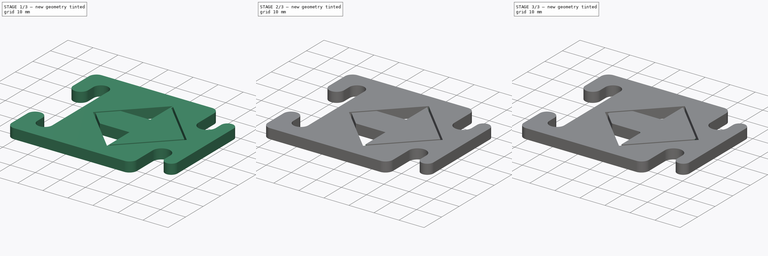
[diagram: build sequence overview — one tinted view per stage of 3, left to right]
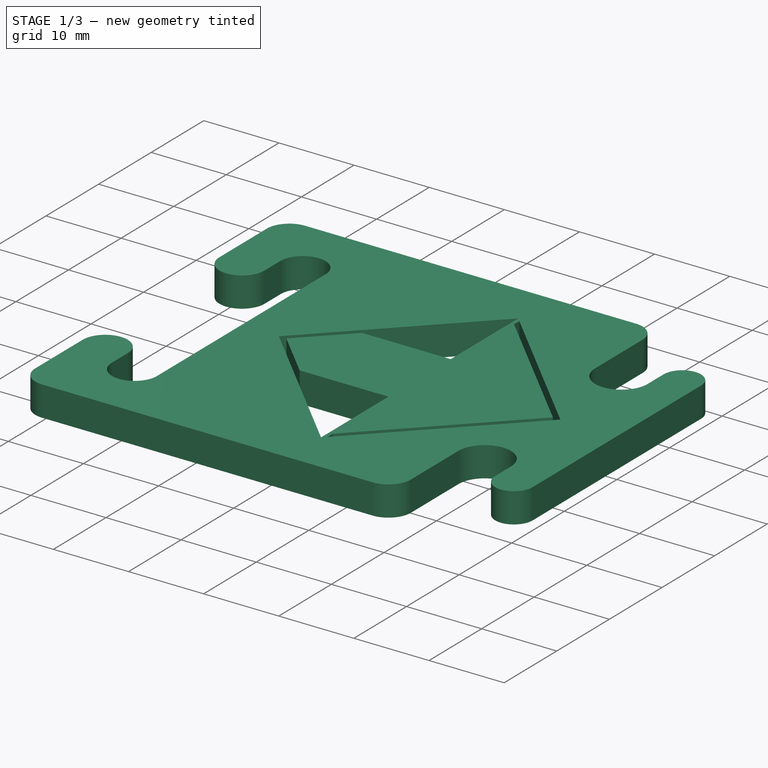
[diagram: stage 1 of 3 — iso view after this stage's code; geometry added in this stage tinted green]
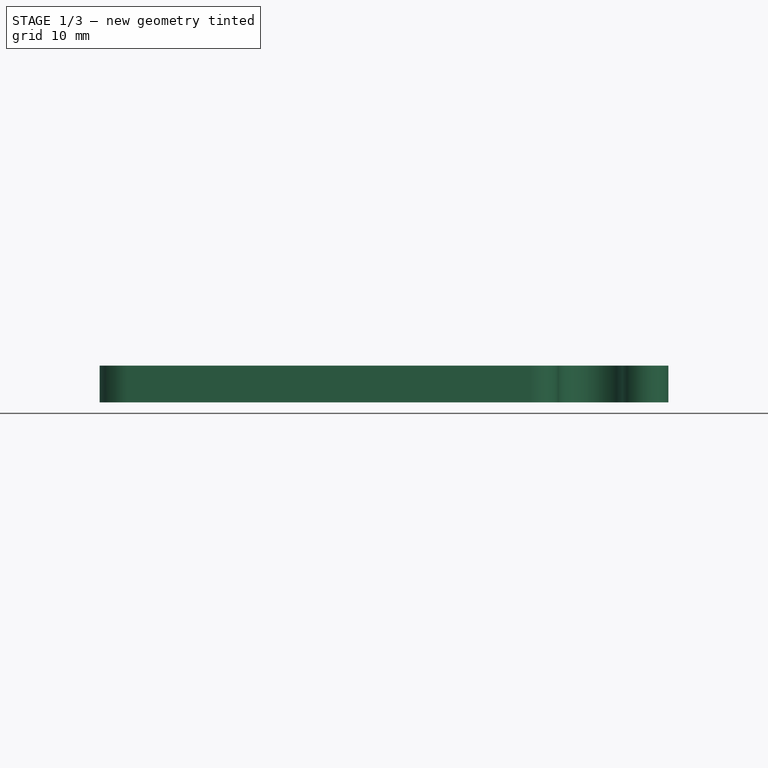
[diagram: stage 1 of 3 — front view after this stage's code; geometry added in this stage tinted green]
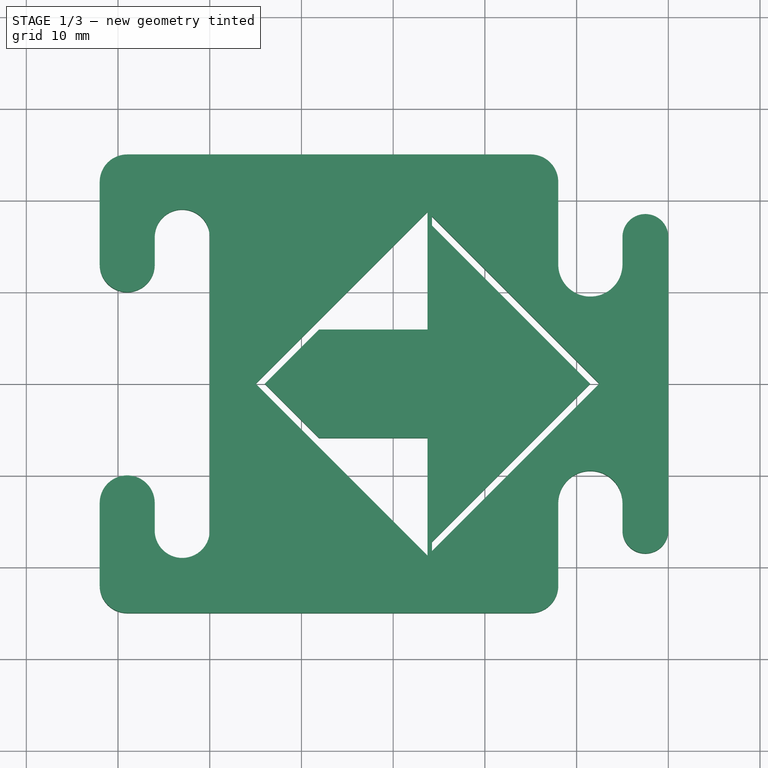
[diagram: stage 1 of 3 — top view after this stage's code; geometry added in this stage tinted green]
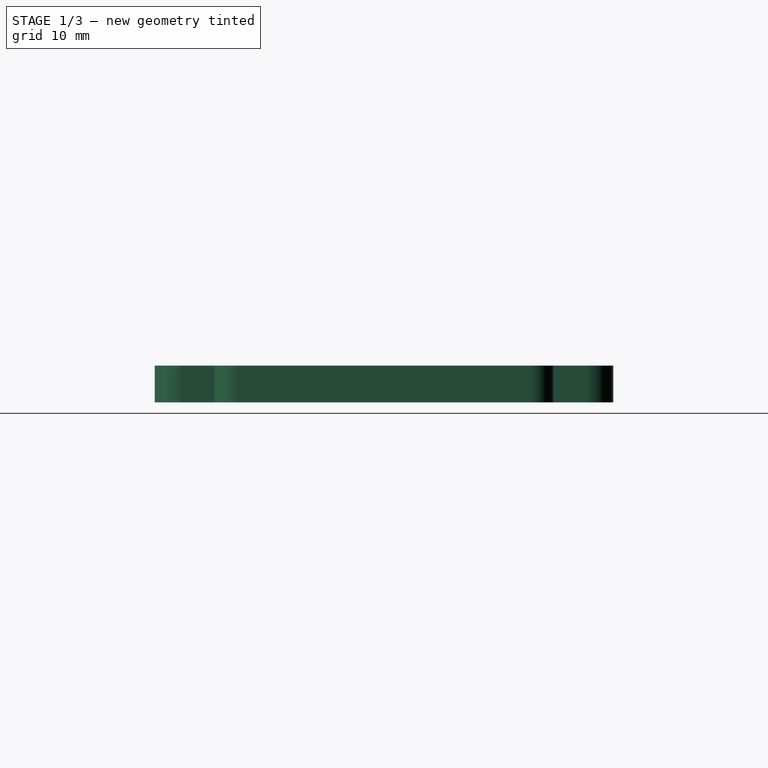
[diagram: stage 1 of 3 — right view after this stage's code; geometry added in this stage tinted green]
FCSTD DOCUMENT  (FreeCAD 0.18R)
Label: escornatinton
License: All rights reserved
LicenseURL: http://en.wikipedia.org/wiki/All_rights_reserved
objects: Sketcher::SketchObject×3, PartDesign::Fillet×3, PartDesign::Pocket×2, PartDesign::Pad×1, PartDesign::Body×1
note: 13 computed .brp shape members not serialized (recipe doc carries the construction recipe); baked Part::Feature solids carry a one-line shape summary decoded from their .brp

FEATURE [Sketcher::SketchObject] Sketch002
  MapMode = 5
  Support = -> [XY_Plane]
  sketch-geometry (25):
    g0: ArcOfCircle CenterX=-8.5 CenterY=-13 CenterZ=0 NormalX=0 NormalY=0 NormalZ=1 AngleXU=0 Radius=3.5 StartAngle=0 EndAngle=3.14159
    g1: ArcOfCircle CenterX=-2.5 CenterY=-16 CenterZ=0 NormalX=0 NormalY=0 NormalZ=1 AngleXU=0 Radius=2.5 StartAngle=3.14159 EndAngle=6.28319
    g2: LineSegment StartX=-5 StartY=-13 StartZ=0 EndX=-5 EndY=-16 EndZ=0
    g3: LineSegment StartX=0 StartY=-16 StartZ=0 EndX=0 EndY=16 EndZ=0
    g4: ArcOfCircle CenterX=-15 CenterY=22 CenterZ=0 NormalX=0 NormalY=0 NormalZ=1 AngleXU=0 Radius=3 StartAngle=0 EndAngle=1.5708
    g5: ArcOfCircle CenterX=-8.5 CenterY=13 CenterZ=0 NormalX=0 NormalY=0 NormalZ=1 AngleXU=0 Radius=3.5 StartAngle=3.14159 EndAngle=6.28319
    g6: ArcOfCircle CenterX=-2.5 CenterY=16 CenterZ=0 NormalX=0 NormalY=0 NormalZ=1 AngleXU=0 Radius=2.5 StartAngle=0 EndAngle=3.14159
    g7: LineSegment StartX=-12 StartY=22 StartZ=0 EndX=-12 EndY=13 EndZ=0
    g8: LineSegment StartX=-5 StartY=13 StartZ=0 EndX=-5 EndY=16 EndZ=0
    g9: LineSegment [constr] StartX=-15 StartY=25 StartZ=0 EndX=-15 EndY=-25 EndZ=0
    g10: ArcOfCircle CenterX=-15 CenterY=-22 CenterZ=0 NormalX=0 NormalY=0 NormalZ=1 AngleXU=0 Radius=3 StartAngle=4.71239 EndAngle=6.28319
    g11: LineSegment StartX=-12 StartY=-22 StartZ=0 EndX=-12 EndY=-13 EndZ=0
    g12: LineSegment StartX=-15 StartY=25 StartZ=0 EndX=-59 EndY=25 EndZ=0
    g13: LineSegment StartX=-62 StartY=22 StartZ=0 EndX=-62 EndY=13 EndZ=0
    g14: LineSegment StartX=-56 StartY=13 StartZ=0 EndX=-56 EndY=16 EndZ=0
    g15: LineSegment StartX=-50 StartY=16 StartZ=0 EndX=-50 EndY=-16 EndZ=0
    g16: LineSegment StartX=-56 StartY=-13 StartZ=0 EndX=-56 EndY=-16 EndZ=0
    g17: LineSegment StartX=-62 StartY=-13 StartZ=0 EndX=-62 EndY=-22 EndZ=0
    g18: LineSegment StartX=-59 StartY=-25 StartZ=0 EndX=-15 EndY=-25 EndZ=0
    g19: ArcOfCircle CenterX=-53 CenterY=16 CenterZ=0 NormalX=0 NormalY=0 NormalZ=1 AngleXU=0 Radius=3 StartAngle=0 EndAngle=3.14159
    g20: ArcOfCircle CenterX=-59 CenterY=13 CenterZ=0 NormalX=0 NormalY=0 NormalZ=1 AngleXU=0 Radius=3 StartAngle=3.14159 EndAngle=6.28319
    g21: ArcOfCircle CenterX=-53 CenterY=-16 CenterZ=0 NormalX=0 NormalY=0 NormalZ=1 AngleXU=0 Radius=3 StartAngle=3.14159 EndAngle=6.28319
    g22: ArcOfCircle CenterX=-59 CenterY=-13 CenterZ=0 NormalX=0 NormalY=0 NormalZ=1 AngleXU=0 Radius=3 StartAngle=4e-16 EndAngle=3.14159
    g23: ArcOfCircle CenterX=-59 CenterY=-22 CenterZ=0 NormalX=0 NormalY=0 NormalZ=1 AngleXU=0 Radius=3 StartAngle=3.14159 EndAngle=4.71239
    g24: ArcOfCircle CenterX=-59 CenterY=22 CenterZ=0 NormalX=0 NormalY=0 NormalZ=1 AngleXU=0 Radius=3 StartAngle=1.5708 EndAngle=3.14159
  constraints (61):
    c: Vertical(g2)
    c: Vertical(g3)
    c: Radius(g4) = 3
    c: Radius(g6) = 2.5
    c: Radius(g5) = 3.5
    c: Vertical(g7)
    c: Tangent(g7,g4) = 1.5708
    c: Tangent(g7,g5) = -1.5708
    c: Vertical(g8)
    c: Tangent(g8,g6) = 1.5708
    c: Tangent(g8,g5) = -1.5708
    c: DistanceY(g7,g7) = 9
    c: DistanceY(g8,g8) = 3
    c: Tangent(g3,g6) = -1.5708
    c: DistanceY(g3,g3) = 32
    c: Coincident(g9,g4)
    c: Vertical(g9)
    c: DistanceY(g9,g9) = 50
    c: Vertical(g11)
    c: Coincident(g10,g9)
    c: Tangent(g11,g10) = -1.5708
    c: Tangent(g11,g0) = 1.5708
    c: Tangent(g2,g0) = 1.5708
    c: Tangent(g2,g1) = -1.5708
    c: Tangent(g3,g1) = -1.5708
    c: Equal(g1,g6)
    c: Equal(g0,g5)
    c: Equal(g10,g4)
    c: Horizontal(g12)
    c: Vertical(g13)
    c: Vertical(g14)
    c: Vertical(g15)
    c: Vertical(g16)
    c: Vertical(g17)
    c: Tangent(g18,g10) = -1.5708
    c: Tangent(g12,g4) = -1.5708
    c: Tangent(g21,g15) = 1.5708
    c: Tangent(g24,g12) = -1.5708
    c: Tangent(g13,g24) = -1.5708
    c: Tangent(g20,g13) = -1.5708
    c: Tangent(g20,g14) = -1.5708
    c: Tangent(g19,g14) = 1.5708
    c: Tangent(g15,g19) = 1.5708
    c: Tangent(g21,g16) = -1.5708
    c: Tangent(g22,g16) = 1.5708
    c: Tangent(g17,g22) = -1.5708
    c: Tangent(g17,g23) = -1.5708
    c: Tangent(g18,g23) = -1.5708
    c: Equal(g24,g4)
    c: DistanceX(g13,g3) = 62
    c: Equal(g15,g3)
    c: Radius(g19) = 3
    c: Equal(g22,g20)
    c: Equal(g24,g23)
    c: Radius(g20) = 3
    c: Equal(g21,g19)
    c: Equal(g17,g13)
    c: Equal(g13,g7)
    c: Equal(g11,g7)
    c: Equal(g14,g16)
    c: Symmetric(g3,g3,g-1)
FEATURE [PartDesign::Pad] Pad
  Length = 4
  Length2 = 100
  Profile = -> Sketch002
  Type = 0
FEATURE [Sketcher::SketchObject] Sketch001
  ExternalGeometry = -> [Pad]
  MapMode = 5
  Placement = pos=(0,0,4) rot=(0,0,1;0rad)
  Support = -> [Pad]
  sketch-geometry (25):
    g0: LineSegment StartX=-45 StartY=3.6e-15 StartZ=0 EndX=-26.2604 EndY=18.7396 EndZ=0
    g1: LineSegment [constr] StartX=-26.2604 StartY=18.7396 StartZ=0 EndX=-7.52082 EndY=1.78e-14 EndZ=0
    g2: LineSegment [constr] StartX=-7.52082 StartY=1.78e-14 StartZ=0 EndX=-26.2604 EndY=-18.7396 EndZ=0
    g3: LineSegment StartX=-26.2604 StartY=-18.7396 StartZ=0 EndX=-45 EndY=3.6e-15 EndZ=0
    g4: LineSegment [constr] StartX=-38.0868 StartY=5.9132 StartZ=0 EndX=-38.0868 EndY=-5.9132 EndZ=0
    g5: LineSegment StartX=-38.0868 StartY=-5.9132 StartZ=0 EndX=-26.2604 EndY=-5.9132 EndZ=0
    g6: LineSegment StartX=-26.2604 StartY=-5.9132 StartZ=0 EndX=-26.2604 EndY=-17.7396 EndZ=0
    g7: LineSegment [constr] StartX=-26.2604 StartY=-17.7396 StartZ=0 EndX=-8.52082 EndY=7.1e-15 EndZ=0
    g8: LineSegment [constr] StartX=-8.52082 StartY=7.1e-15 StartZ=0 EndX=-26.2604 EndY=17.7396 EndZ=0
    g9: LineSegment StartX=-26.2604 StartY=17.7396 StartZ=0 EndX=-26.2604 EndY=5.9132 EndZ=0
    g10: LineSegment StartX=-26.2604 StartY=5.9132 StartZ=0 EndX=-38.0868 EndY=5.9132 EndZ=0
    g11: LineSegment StartX=-38.0868 StartY=5.9132 StartZ=0 EndX=-44 EndY=3.6e-15 EndZ=0
    g12: LineSegment StartX=-44 StartY=3.6e-15 StartZ=0 EndX=-38.0868 EndY=-5.9132 EndZ=0
    g13: LineSegment [constr] StartX=-45 StartY=3.6e-15 StartZ=0 EndX=-44 EndY=3.6e-15 EndZ=0
    g14: LineSegment [constr] StartX=-8.5 StartY=-13 StartZ=0 EndX=-14.5104 EndY=-6.98959 EndZ=0
    g15: LineSegment [constr] StartX=-10.9749 StartY=-10.5251 StartZ=0 EndX=-14.5104 EndY=-6.98959 EndZ=0
    g16: LineSegment [constr] StartX=-45 StartY=3.6e-15 StartZ=0 EndX=-50 EndY=3.6e-15 EndZ=0
    g17: LineSegment StartX=-7.52082 StartY=1.78e-14 StartZ=0 EndX=-25.7604 EndY=18.2396 EndZ=0
    g18: LineSegment StartX=-25.7604 StartY=18.2396 StartZ=0 EndX=-25.7604 EndY=17.2396 EndZ=0
    g19: LineSegment StartX=-25.7604 StartY=17.2396 StartZ=0 EndX=-8.52082 EndY=7.1e-15 EndZ=0
    g20: LineSegment StartX=-8.52082 StartY=7.1e-15 StartZ=0 EndX=-25.7604 EndY=-17.2396 EndZ=0
    g21: LineSegment StartX=-25.7604 StartY=-17.2396 StartZ=0 EndX=-25.7604 EndY=-18.2396 EndZ=0
    g22: LineSegment StartX=-25.7604 StartY=-18.2396 StartZ=0 EndX=-7.52082 EndY=1.78e-14 EndZ=0
    g23: LineSegment StartX=-26.2604 StartY=-17.7396 StartZ=0 EndX=-26.2604 EndY=-18.7396 EndZ=0
    g24: LineSegment StartX=-26.2604 StartY=17.7396 StartZ=0 EndX=-26.2604 EndY=18.7396 EndZ=0
  constraints (68):
    c: Coincident(g0,g1)
    c: Coincident(g1,g2)
    c: Coincident(g2,g3)
    c: Coincident(g3,g0)
    c: Equal(g0,g1)
    c: Equal(g1,g2)
    c: Equal(g2,g3)
    c: Perpendicular(g0,g1)
    c: Vertical(g4)
    c: Coincident(g4,g5)
    c: Horizontal(g5)
    c: Coincident(g5,g6)
    c: Vertical(g6)
    c: Vertical(g9)
    c: Coincident(g9,g10)
    c: Coincident(g10,g4)
    c: Horizontal(g10)
    c: Equal(g9,g6)
    c: Equal(g10,g5)
    c: Coincident(g11,g10)
    c: Coincident(g12,g11)
    c: Coincident(g12,g5)
    c: Perpendicular(g11,g12)
    c: Perpendicular(g8,g7)
    c: Coincident(g13,g11)
    c: Coincident(g13,g0)
    c: Equal(g11,g12)
    c: PointOnObject(g14,g2)
    c: Coincident(g15,g14)
    c: Perpendicular(g2,g14)
    c: PointOnObject(g15,g14)
    c: Horizontal(g13)
    c: Coincident(g16,g0)
    c: Horizontal(g16)
    c: Distance(g15) = 5
    c: Distance(g16) = 5
    c: Coincident(g8,g7)
    c: Equal(g8,g7)
    c: Equal(g10,g9)
    c: Equal(g10,g4)
    c: Coincident(g1,g17)
    c: PointOnObject(g17,g1)
    c: Coincident(g17,g18)
    c: PointOnObject(g18,g8)
    c: Vertical(g18)
    c: Coincident(g18,g19)
    c: Coincident(g19,g7)
    c: Coincident(g19,g20)
    c: PointOnObject(g20,g7)
    c: Coincident(g20,g21)
    c: Vertical(g21)
    c: Coincident(g21,g22)
    c: Coincident(g22,g17)
    c: Coincident(g8,g9)
    c: DistanceX(g0,g17) = 0.5
    c: Coincident(g23,g6)
    c: Coincident(g23,g3)
    c: Vertical(g23)
    c: Coincident(g6,g7)
    c: PointOnObject(g21,g2)
    c: Coincident(g24,g9)
    c: Coincident(g24,g0)
    c: Vertical(g24)
    c: Equal(g20,g19)
    c: DistanceX(g13,g13) = 1
    c: Coincident(g14,g-4)
    c: PointOnObject(g15,g-4)
    c: Symmetric(g-3,g-3,g16)
FEATURE [PartDesign::Pocket] Pocket
  BaseFeature = -> Pad
  Length = 5
  Length2 = 100
  Profile = -> Sketch001
  Type = 1
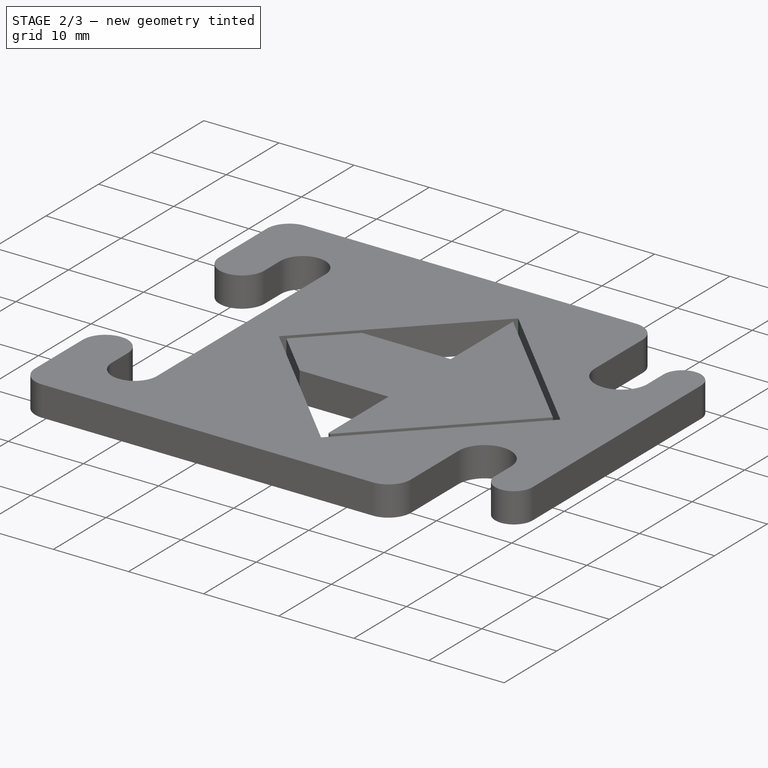
[diagram: stage 2 of 3 — iso view after this stage's code; geometry added in this stage tinted green]
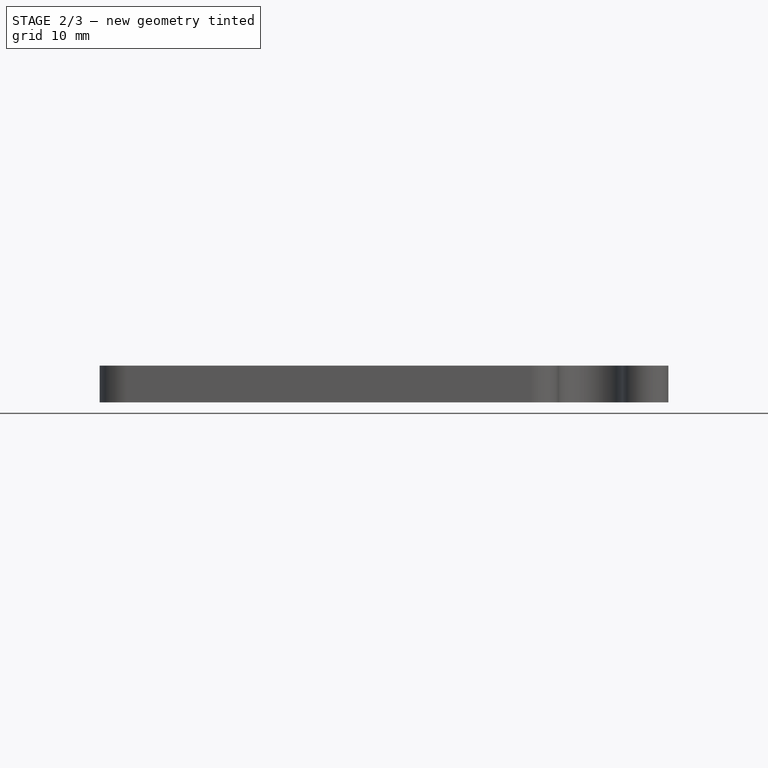
[diagram: stage 2 of 3 — front view after this stage's code; geometry added in this stage tinted green]
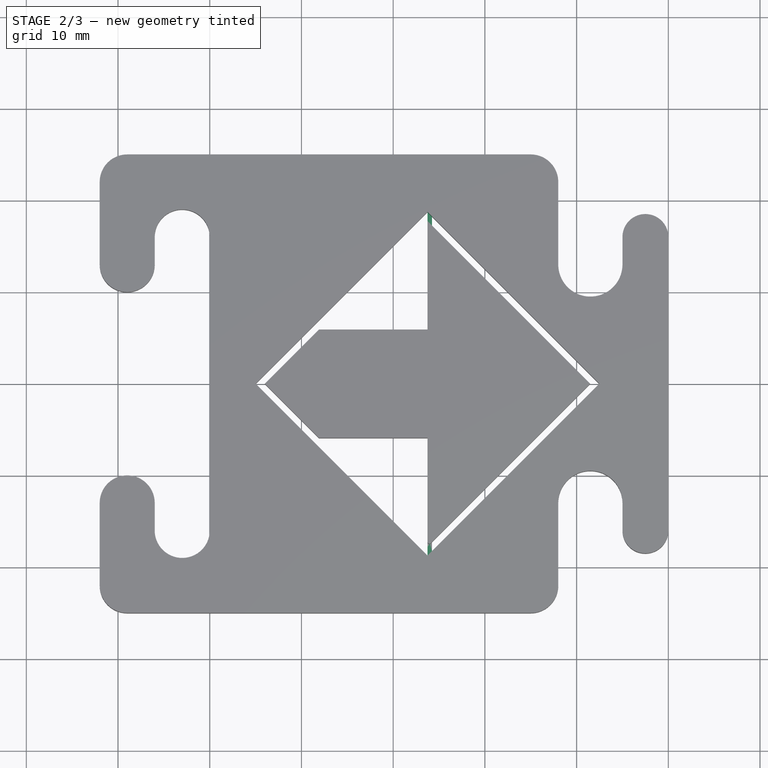
[diagram: stage 2 of 3 — top view after this stage's code; geometry added in this stage tinted green]
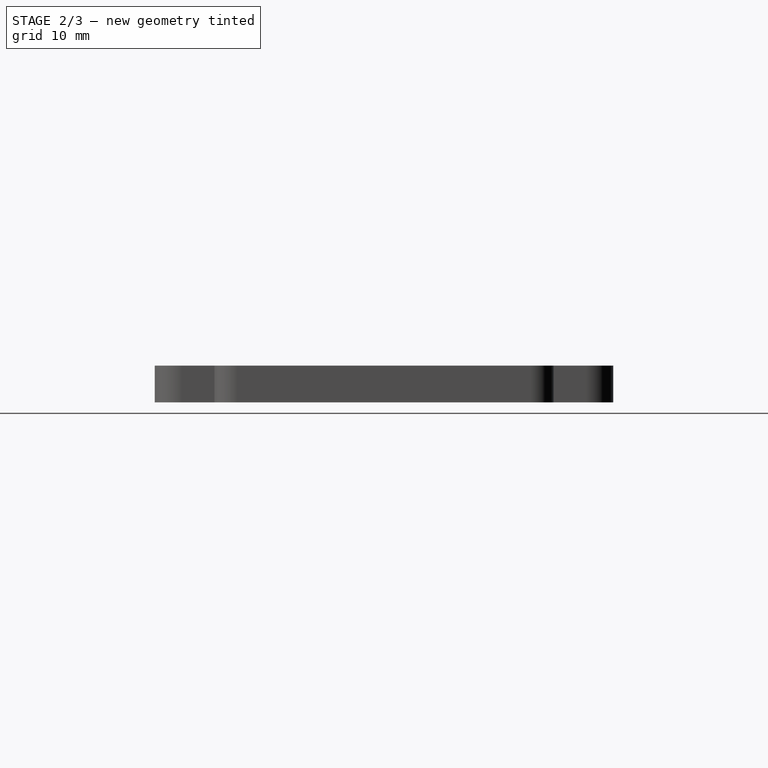
[diagram: stage 2 of 3 — right view after this stage's code; geometry added in this stage tinted green]
FEATURE [Sketcher::SketchObject] Sketch
  ExternalGeometry = -> [Pocket]
  MapMode = 5
  Placement = pos=(0,0,4) rot=(0,0,1;0rad)
  Support = -> [Pocket]
  sketch-geometry (8):
    g0: LineSegment StartX=-25.7604 StartY=-17.2396 StartZ=0 EndX=-26.2604 EndY=-17.7396 EndZ=0
    g1: LineSegment StartX=-26.2604 StartY=-17.7396 StartZ=0 EndX=-26.2604 EndY=-18.7396 EndZ=0
    g2: LineSegment StartX=-26.2604 StartY=-18.7396 StartZ=0 EndX=-25.7604 EndY=-18.2396 EndZ=0
    g3: LineSegment StartX=-25.7604 StartY=-18.2396 StartZ=0 EndX=-25.7604 EndY=-17.2396 EndZ=0
    g4: LineSegment StartX=-26.2604 StartY=18.7396 StartZ=0 EndX=-25.7604 EndY=18.2396 EndZ=0
    g5: LineSegment StartX=-25.7604 StartY=18.2396 StartZ=0 EndX=-25.7604 EndY=17.2396 EndZ=0
    g6: LineSegment StartX=-25.7604 StartY=17.2396 StartZ=0 EndX=-26.2604 EndY=17.7396 EndZ=0
    g7: LineSegment StartX=-26.2604 StartY=17.7396 StartZ=0 EndX=-26.2604 EndY=18.7396 EndZ=0
  constraints (16):
    c: Coincident(g-5,g0)
    c: Coincident(g0,g-6)
    c: Coincident(g0,g1)
    c: Coincident(g1,g-6)
    c: Coincident(g1,g2)
    c: Coincident(g2,g-5)
    c: Coincident(g2,g3)
    c: Coincident(g3,g0)
    c: Coincident(g-4,g4)
    c: Coincident(g4,g-3)
    c: Coincident(g4,g5)
    c: Coincident(g5,g-3)
    c: Coincident(g5,g6)
    c: Coincident(g6,g-4)
    c: Coincident(g6,g7)
    c: Coincident(g7,g4)
FEATURE [PartDesign::Pocket] Pocket001
  BaseFeature = -> Pocket
  Length = 3
  Length2 = 100
  Profile = -> Sketch
  Type = 0
FEATURE [PartDesign::Fillet] Fillet
  Base = -> Pocket001 [Edge105]
  BaseFeature = -> Pocket001
  Radius = 0.2
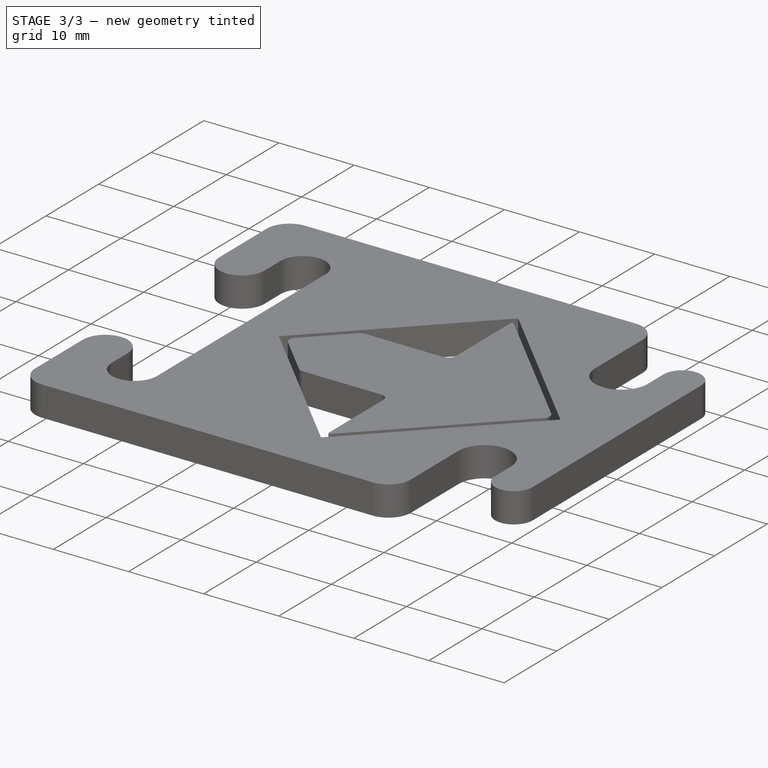
[diagram: stage 3 of 3 — iso view after this stage's code; geometry added in this stage tinted green]
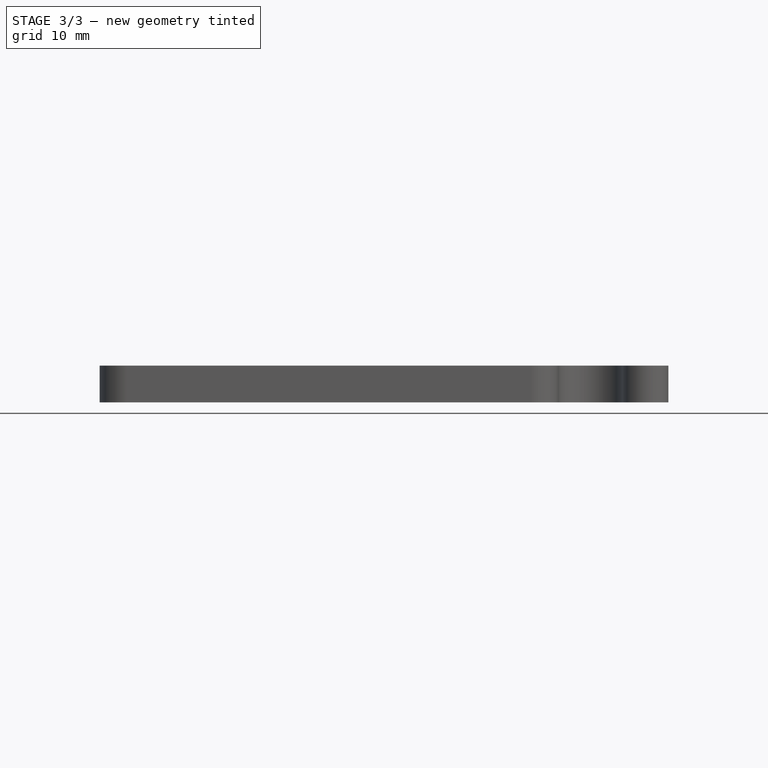
[diagram: stage 3 of 3 — front view after this stage's code; geometry added in this stage tinted green]
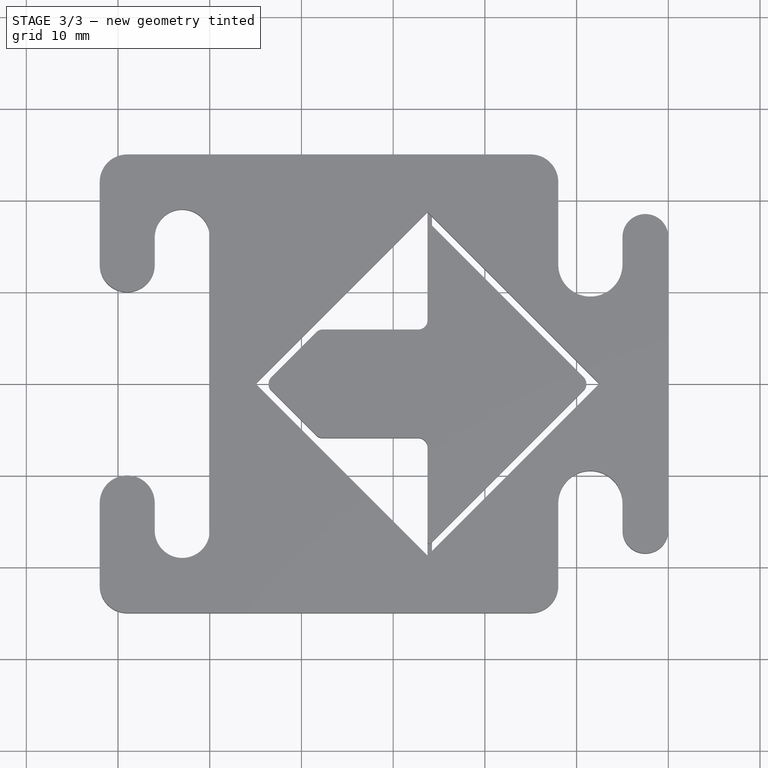
[diagram: stage 3 of 3 — top view after this stage's code; geometry added in this stage tinted green]
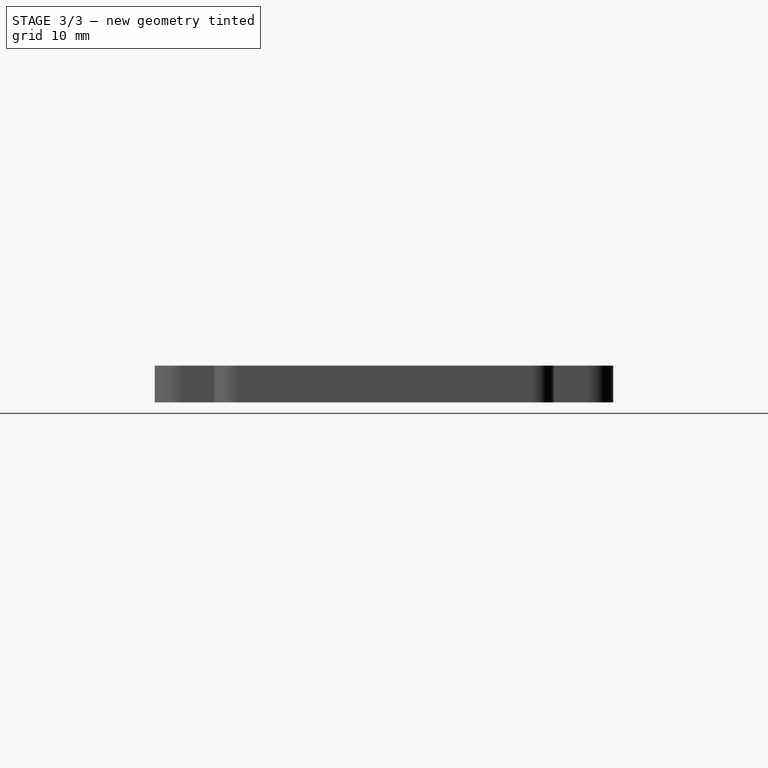
[diagram: stage 3 of 3 — right view after this stage's code; geometry added in this stage tinted green]
FEATURE [PartDesign::Fillet] Fillet001
  Base = -> Fillet [Edge73]
  BaseFeature = -> Fillet
  Radius = 0.2
FEATURE [PartDesign::Fillet] Fillet002
  Base = -> Fillet001 [Edge24,Edge29,Edge20,Edge14,Edge34,Edge28]
  BaseFeature = -> Fillet001
  Radius = 1
FEATURE [PartDesign::Body] Body
  Group = -> [Sketch002,Pad,Pocket,Sketch,Pocket001,Fillet,Fillet001,Fillet002]
  Origin = -> Origin
  Tip = -> Fillet002
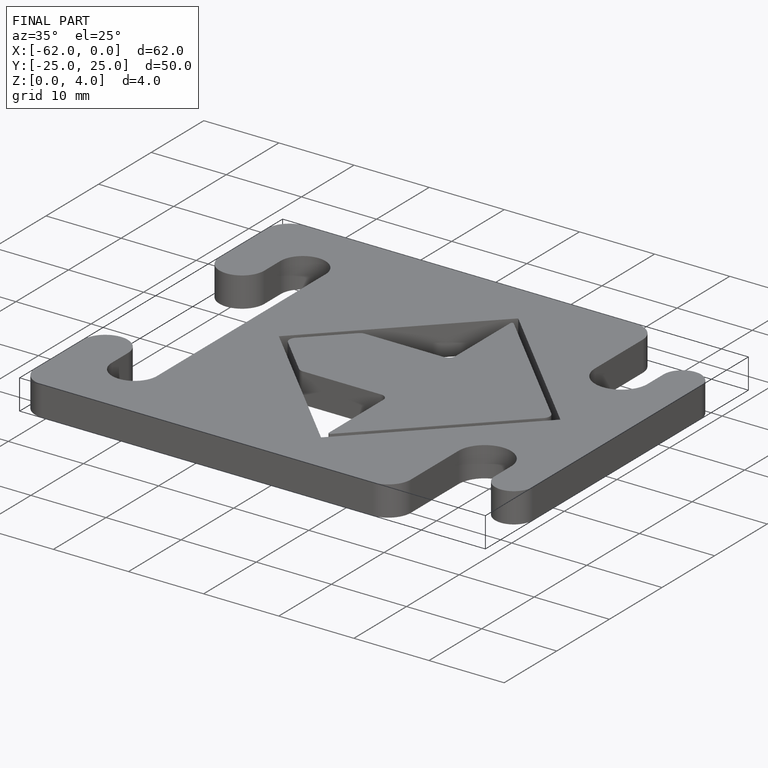
[diagram: finished part — iso view with bounding-box wireframe]
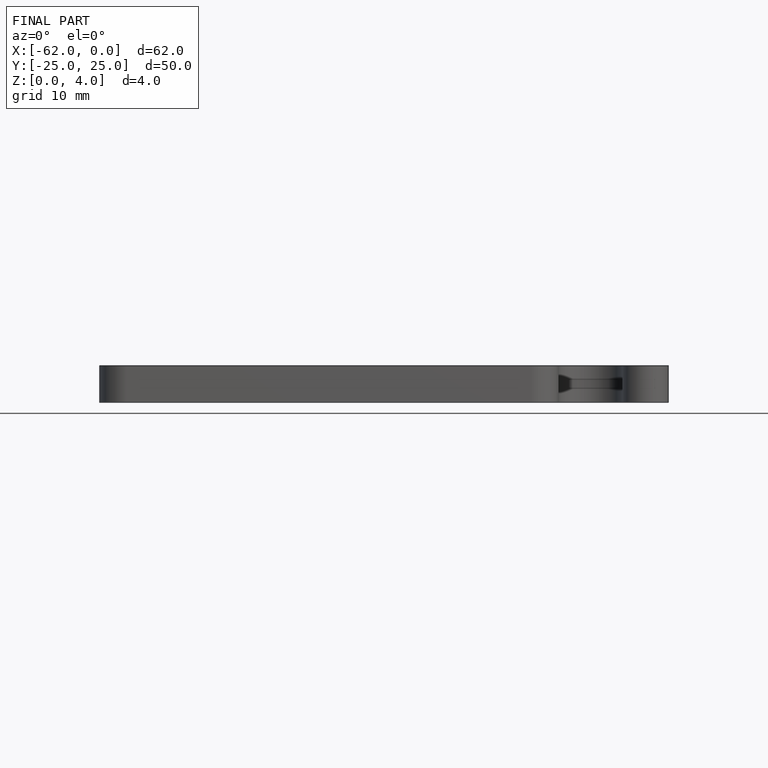
[diagram: finished part — front view with bounding-box wireframe]
